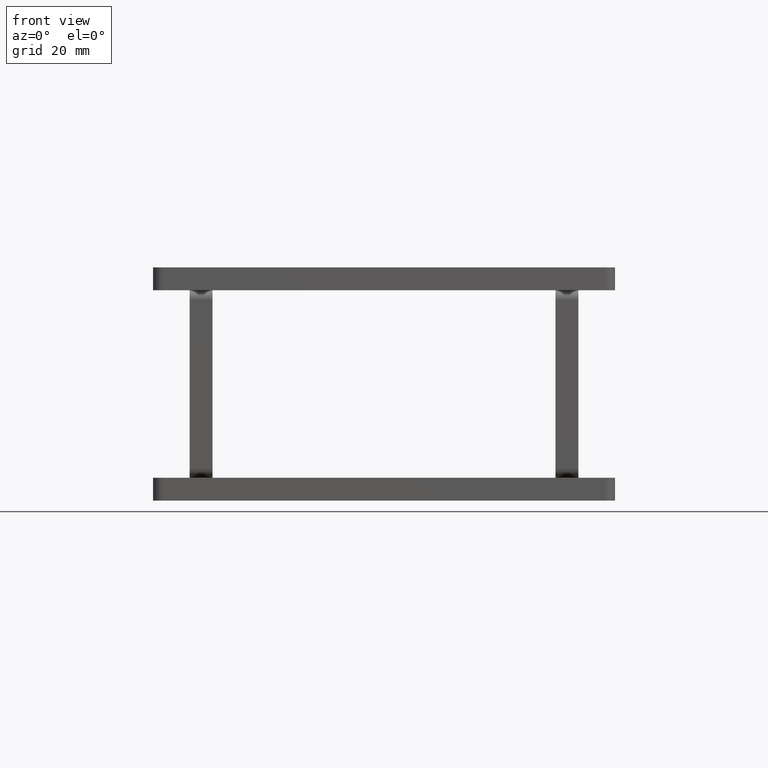
[diagram: clean part render]
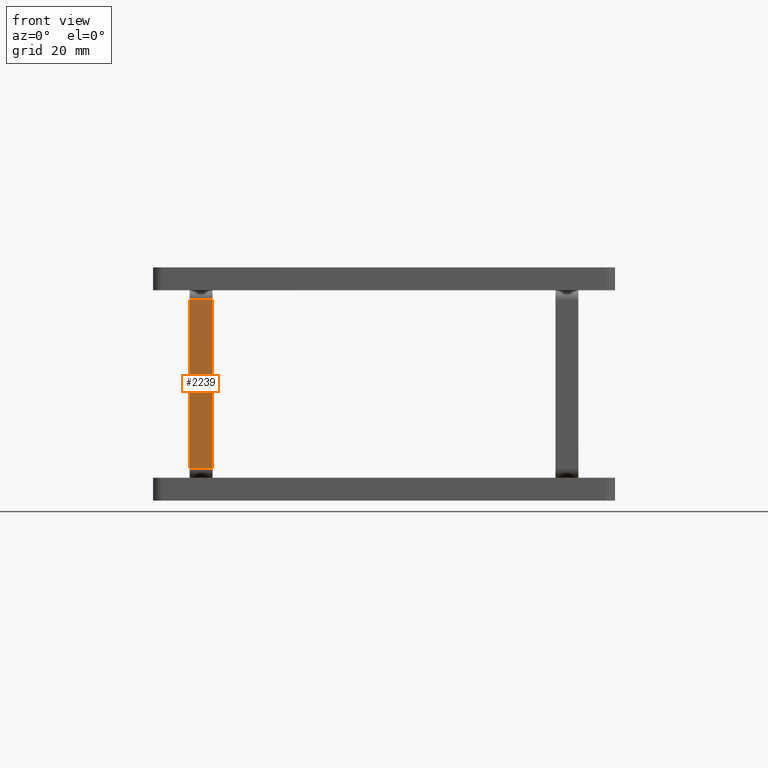
[diagram: same view with one face highlighted and labeled with its STEP entity id]
A machine part, front view. The second image highlights one B-rep face of the part: STEP entity #2239.
In plain terms, the highlighted planar face has unit normal (0, -1, 0).
Its self-contained STEP definition (entity closure, byte-faithful):
#22 = EDGE_CURVE ( 'NONE', #1119, #1836, #433, .T. ) ;
#69 = CARTESIAN_POINT ( 'NONE',  ( 18.49999999999998934, -43.50000000000002132, -4.999999999999997335 ) ) ;
#145 = EDGE_LOOP ( 'NONE', ( #1999, #1335, #2261, #920 ) ) ;
#287 = DIRECTION ( 'NONE',  ( 0.000000000000000000, -1.000000000000000000, 0.000000000000000000 ) ) ;
#304 = EDGE_CURVE ( 'NONE', #1198, #1836, #1488, .T. ) ;
#433 = LINE ( 'NONE', #813, #954 ) ;
#442 = DIRECTION ( 'NONE',  ( 0.000000000000000000, 0.000000000000000000, -1.000000000000000000 ) ) ;
#457 = CARTESIAN_POINT ( 'NONE',  ( -20.50000000000000355, -43.50000000000002132, -4.999999999999997335 ) ) ;
#468 = PLANE ( 'NONE',  #1487 ) ;
#613 = DIRECTION ( 'NONE',  ( -0.000000000000000000, -0.000000000000000000, -1.000000000000000000 ) ) ;
#729 = CARTESIAN_POINT ( 'NONE',  ( -18.50000000000000355, -43.50000000000002132, -4.999999999999997335 ) ) ;
#734 = DIRECTION ( 'NONE',  ( 0.000000000000000000, 0.000000000000000000, 1.000000000000000000 ) ) ;
#813 = CARTESIAN_POINT ( 'NONE',  ( -20.50000000000000355, -43.50000000000002132, 0.000000000000000000 ) ) ;
#846 = VECTOR ( 'NONE', #734, 1000.000000000000000 ) ;
#920 = ORIENTED_EDGE ( 'NONE', *, *, #304, .T. ) ;
#954 = VECTOR ( 'NONE', #1859, 1000.000000000000000 ) ;
#1023 = FACE_OUTER_BOUND ( 'NONE', #145, .T. ) ;
#1047 = LINE ( 'NONE', #1763, #1671 ) ;
#1119 = VERTEX_POINT ( 'NONE', #1309 ) ;
#1198 = VERTEX_POINT ( 'NONE', #69 ) ;
#1264 = DIRECTION ( 'NONE',  ( 1.000000000000000000, 0.000000000000000000, 0.000000000000000000 ) ) ;
#1288 = CARTESIAN_POINT ( 'NONE',  ( 18.50000000000000355, -43.50000000000002132, -4.999999999999997335 ) ) ;
#1309 = CARTESIAN_POINT ( 'NONE',  ( -18.50000000000000355, -43.50000000000002132, 0.000000000000000000 ) ) ;
#1324 = EDGE_CURVE ( 'NONE', #1119, #1844, #1716, .T. ) ;
#1335 = ORIENTED_EDGE ( 'NONE', *, *, #1324, .T. ) ;
#1344 = VECTOR ( 'NONE', #613, 1000.000000000000000 ) ;
#1487 = AXIS2_PLACEMENT_3D ( 'NONE', #457, #287, #442 ) ;
#1488 = LINE ( 'NONE', #1288, #846 ) ;
#1579 = CARTESIAN_POINT ( 'NONE',  ( 18.49999999999998934, -43.50000000000002132, 0.000000000000000000 ) ) ;
#1671 = VECTOR ( 'NONE', #1264, 1000.000000000000000 ) ;
#1689 = CARTESIAN_POINT ( 'NONE',  ( -18.50000000000000355, -43.50000000000002132, -4.999999999999997335 ) ) ;
#1716 = LINE ( 'NONE', #1689, #1344 ) ;
#1763 = CARTESIAN_POINT ( 'NONE',  ( -20.50000000000000355, -43.50000000000002132, -4.999999999999997335 ) ) ;
#1836 = VERTEX_POINT ( 'NONE', #1579 ) ;
#1844 = VERTEX_POINT ( 'NONE', #729 ) ;
#1859 = DIRECTION ( 'NONE',  ( 1.000000000000000000, 0.000000000000000000, 0.000000000000000000 ) ) ;
#1899 = EDGE_CURVE ( 'NONE', #1844, #1198, #1047, .T. ) ;
#1999 = ORIENTED_EDGE ( 'NONE', *, *, #22, .F. ) ;
#2239 = ADVANCED_FACE ( 'NONE', ( #1023 ), #468, .T. ) ;
#2261 = ORIENTED_EDGE ( 'NONE', *, *, #1899, .T. ) ;